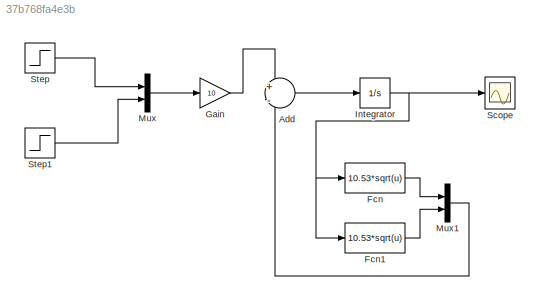
MODEL slx_37b768fa4e3b
KIND model
CONFIG AbsTol = auto
CONFIG EnableMultiTasking = off
CONFIG FixedStep = auto
CONFIG MaxStep = auto
CONFIG MinStep = auto
CONFIG RelTol = 1e-3
CONFIG SampleTimeConstraint = Unconstrained
CONFIG SolverName = VariableStepAuto
CONFIG StartTime = 0.0
CONFIG StopTime = 300
BLOCK [Sum] Add
  Inputs = +-
BLOCK [Fcn] Fcn
  Expr = 10.53*sqrt(u)
BLOCK [Fcn] Fcn1
  Expr = 10.53*sqrt(u)
BLOCK [Gain] Gain
  Gain = 10
BLOCK [Integrator] Integrator
  InitialCondition = 14
BLOCK [Mux] Mux
  DisplayOption = bar
  Inputs = 2
BLOCK [Mux] Mux1
  DisplayOption = bar
  Inputs = 2
BLOCK [Scope] Scope
  Floating = off
  NumInputPorts = 1
  ScopeSpecificationString = Simulink.scopes.TimeScopeBlockCfg('CurrentConfiguration', extmgr.ConfigurationSet(extmgr.Configuration('Core','General UI',true),extmgr.Configuration('Core','Source UI',true),extmgr.Configuration('Sources','WiredSimulink',true),extmgr.Configuration('Visuals','Time Domain',true,'SerializedDisplays',{struct('MinYLimReal','-0.73478','MaxYLimReal','15.6372','YLabelReal','','MinYLimMag','0.00000','MaxY...<+1478ch>
BLOCK [Step] Step
  SampleTime = 0
  Time = 0
BLOCK [Step] Step1
  SampleTime = 0
  Time = 0
LINE Add:1 -> Integrator:1
LINE Fcn1:1 -> Mux1:2
LINE Fcn:1 -> Mux1:1
LINE Gain:1 -> Add:1
NET Integrator:1 -> Fcn1:1, Fcn:1, Scope:1
LINE Mux1:1 -> Add:2
LINE Mux:1 -> Gain:1
LINE Step1:1 -> Mux:2
LINE Step:1 -> Mux:1
note: NET lines group one-source signal fan-out (src -> all destinations, sorted); 1:1 wires keep LINE
